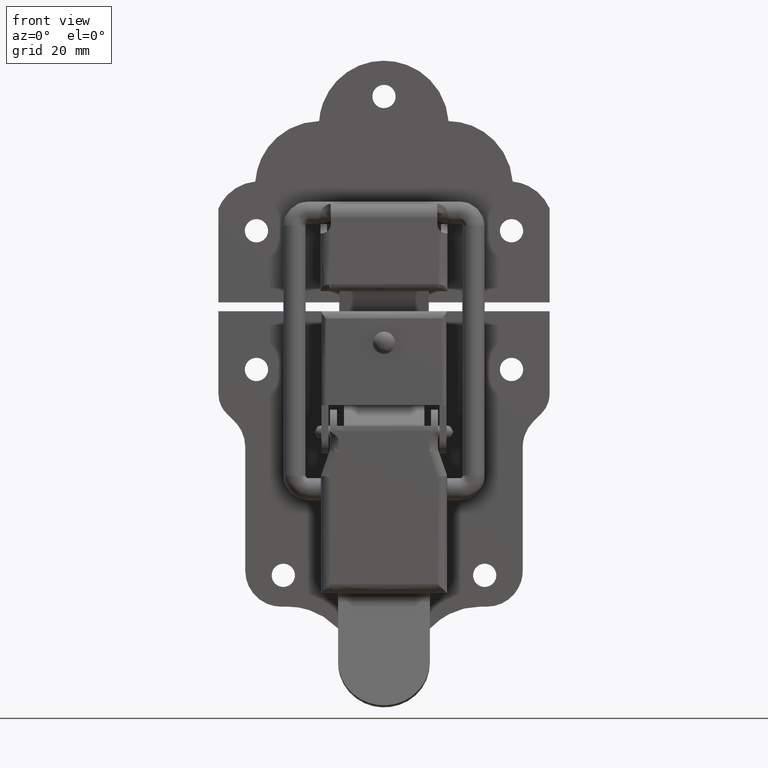
[diagram: clean part render]
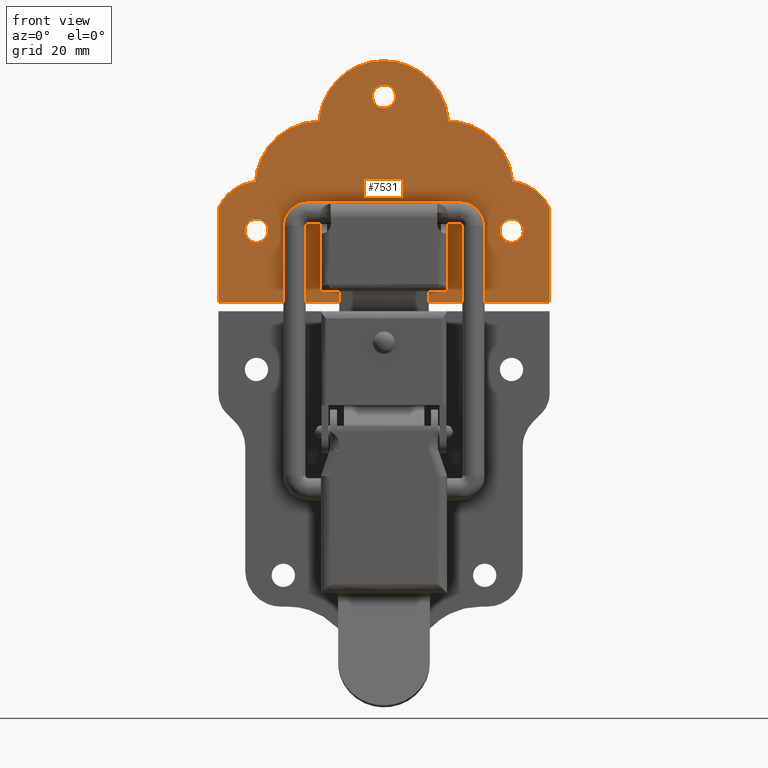
[diagram: same view with one face highlighted and labeled with its STEP entity id]
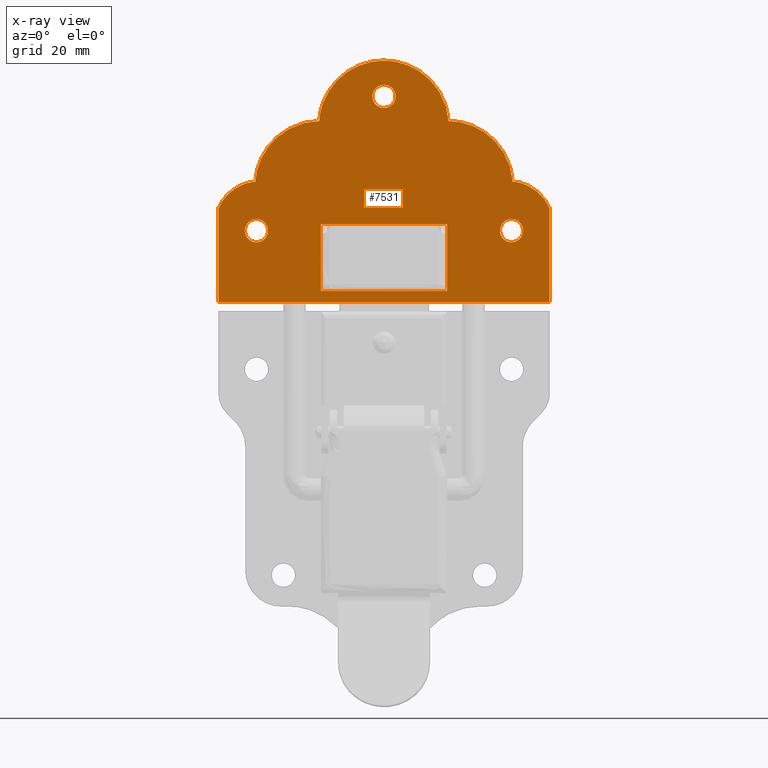
[diagram: x-ray of the same camera — body ghosted, the highlighted face saturated]
A machine part, front view. The second image highlights one B-rep face of the part: STEP entity #7531.
The next image is the same camera in x-ray: the body ghosted, the highlighted face saturated — about 0% of this face is hidden behind the body in this view.
In plain terms, the highlighted face is a freeform B-spline surface patch.
Its self-contained STEP definition (entity closure, byte-faithful):
#3042=CARTESIAN_POINT('',(25.918175231523769,10.900000000000119,45.306889010690611));
#3043=VERTEX_POINT('',#3042);
#3044=CARTESIAN_POINT('',(28.500000000000000,10.900000000000119,42.399999999999999));
#3045=VERTEX_POINT('',#3044);
#3046=CARTESIAN_POINT('',(25.918175231523769,10.900000000000121,45.306889010690618));
#3047=CARTESIAN_POINT('',(25.899999999999995,10.900000000000116,45.153982711684172));
#3048=CARTESIAN_POINT('',(25.899999999999999,10.900000000000119,45.0));
#3049=CARTESIAN_POINT('',(25.899999999999999,10.900000000000119,42.400000000000006));
#3050=CARTESIAN_POINT('',(28.500000000000000,10.900000000000119,42.399999999999999));
#3058=(BOUNDED_CURVE()B_SPLINE_CURVE(2,(#3046,#3047,#3048,#3049,#3050),.UNSPECIFIED.,.F.,.U.)B_SPLINE_CURVE_WITH_KNOTS((3,2,3),(0.229562473439313,0.250000000000000,0.500000000000000),.UNSPECIFIED.)CURVE()GEOMETRIC_REPRESENTATION_ITEM()RATIONAL_B_SPLINE_CURVE((0.956026754038274,0.976055948244220,1.0,0.707106781186548,1.0))REPRESENTATION_ITEM(''));
#3059=EDGE_CURVE('',#3043,#3045,#3058,.T.);
#3061=CARTESIAN_POINT('',(31.095150475863989,10.900000000000119,44.841273796671999));
#3062=VERTEX_POINT('',#3061);
#3063=CARTESIAN_POINT('',(28.500000000000000,10.900000000000119,42.399999999999999));
#3064=CARTESIAN_POINT('',(30.945835772940004,10.900000000000119,42.399999999999999));
#3065=CARTESIAN_POINT('',(31.095150475863985,10.900000000000123,44.841273796672006));
#3073=(BOUNDED_CURVE()B_SPLINE_CURVE(2,(#3063,#3064,#3065),.UNSPECIFIED.,.F.,.U.)B_SPLINE_CURVE_WITH_KNOTS((3,3),(0.500000000000000,0.739332962170511),.UNSPECIFIED.)CURVE()GEOMETRIC_REPRESENTATION_ITEM()RATIONAL_B_SPLINE_CURVE((1.0,0.719603993366883,0.976072041520055))REPRESENTATION_ITEM(''));
#3074=EDGE_CURVE('',#3045,#3062,#3073,.T.);
#3141=CARTESIAN_POINT('',(28.500000000000000,10.900000000000119,47.599999999999987));
#3142=VERTEX_POINT('',#3141);
#3143=CARTESIAN_POINT('',(28.500000000000000,10.900000000000119,47.599999999999987));
#3144=CARTESIAN_POINT('',(26.190746233576771,10.900000000000119,47.599999999999980));
#3145=CARTESIAN_POINT('',(25.918175231523769,10.900000000000121,45.306889010690618));
#3153=(BOUNDED_CURVE()B_SPLINE_CURVE(2,(#3143,#3144,#3145),.UNSPECIFIED.,.F.,.U.)B_SPLINE_CURVE_WITH_KNOTS((3,3),(0.0,0.229562473439313),.UNSPECIFIED.)CURVE()GEOMETRIC_REPRESENTATION_ITEM()RATIONAL_B_SPLINE_CURVE((1.0,0.731050832942328,0.956026754038274))REPRESENTATION_ITEM(''));
#3154=EDGE_CURVE('',#3142,#3043,#3153,.T.);
#3188=CARTESIAN_POINT('',(31.095150475863989,10.900000000000116,44.841273796672006));
#3189=CARTESIAN_POINT('',(31.100000000000001,10.900000000000116,44.920562814884789));
#3190=CARTESIAN_POINT('',(31.100000000000001,10.900000000000119,45.0));
#3191=CARTESIAN_POINT('',(31.100000000000001,10.900000000000119,47.599999999999980));
#3192=CARTESIAN_POINT('',(28.500000000000000,10.900000000000119,47.599999999999987));
#3200=(BOUNDED_CURVE()B_SPLINE_CURVE(2,(#3188,#3189,#3190,#3191,#3192),.UNSPECIFIED.,.F.,.U.)B_SPLINE_CURVE_WITH_KNOTS((3,2,3),(0.739332962170510,0.750000000000000,1.0),.UNSPECIFIED.)CURVE()GEOMETRIC_REPRESENTATION_ITEM()RATIONAL_B_SPLINE_CURVE((0.976072041520054,0.987502787819664,1.0,0.707106781186548,1.0))REPRESENTATION_ITEM(''));
#3201=EDGE_CURVE('',#3062,#3142,#3200,.T.);
#3228=CARTESIAN_POINT('',(-2.581824768476230,10.900000000000119,75.306889010690611));
#3229=VERTEX_POINT('',#3228);
#3230=CARTESIAN_POINT('',(0.0,10.900000000000119,72.399999999999991));
#3231=VERTEX_POINT('',#3230);
#3232=CARTESIAN_POINT('',(-2.581824768476230,10.900000000000116,75.306889010690597));
#3233=CARTESIAN_POINT('',(-2.600000000000000,10.900000000000118,75.153982711684179));
#3234=CARTESIAN_POINT('',(-2.600000000000000,10.900000000000119,75.0));
#3235=CARTESIAN_POINT('',(-2.600000000000001,10.900000000000119,72.399999999999991));
#3236=CARTESIAN_POINT('',(0.0,10.900000000000119,72.399999999999991));
#3244=(BOUNDED_CURVE()B_SPLINE_CURVE(2,(#3232,#3233,#3234,#3235,#3236),.UNSPECIFIED.,.F.,.U.)B_SPLINE_CURVE_WITH_KNOTS((3,2,3),(0.229562473439314,0.250000000000000,0.500000000000000),.UNSPECIFIED.)CURVE()GEOMETRIC_REPRESENTATION_ITEM()RATIONAL_B_SPLINE_CURVE((0.956026754038276,0.976055948244221,1.0,0.707106781186548,1.0))REPRESENTATION_ITEM(''));
#3245=EDGE_CURVE('',#3229,#3231,#3244,.T.);
#3247=CARTESIAN_POINT('',(2.595150475863987,10.900000000000119,74.841273796671999));
#3248=VERTEX_POINT('',#3247);
#3249=CARTESIAN_POINT('',(0.0,10.900000000000119,72.399999999999991));
#3250=CARTESIAN_POINT('',(2.445835772940012,10.900000000000119,72.400000000000006));
#3251=CARTESIAN_POINT('',(2.595150475863987,10.900000000000123,74.841273796671999));
#3259=(BOUNDED_CURVE()B_SPLINE_CURVE(2,(#3249,#3250,#3251),.UNSPECIFIED.,.F.,.U.)B_SPLINE_CURVE_WITH_KNOTS((3,3),(0.500000000000000,0.739332962170511),.UNSPECIFIED.)CURVE()GEOMETRIC_REPRESENTATION_ITEM()RATIONAL_B_SPLINE_CURVE((1.0,0.719603993366883,0.976072041520055))REPRESENTATION_ITEM(''));
#3260=EDGE_CURVE('',#3231,#3248,#3259,.T.);
#3327=CARTESIAN_POINT('',(0.0,10.900000000000119,77.600000000000009));
#3328=VERTEX_POINT('',#3327);
#3329=CARTESIAN_POINT('',(0.0,10.900000000000119,77.600000000000009));
#3330=CARTESIAN_POINT('',(-2.309253766423246,10.900000000000119,77.600000000000009));
#3331=CARTESIAN_POINT('',(-2.581824768476230,10.900000000000116,75.306889010690597));
#3339=(BOUNDED_CURVE()B_SPLINE_CURVE(2,(#3329,#3330,#3331),.UNSPECIFIED.,.F.,.U.)B_SPLINE_CURVE_WITH_KNOTS((3,3),(0.0,0.229562473439314),.UNSPECIFIED.)CURVE()GEOMETRIC_REPRESENTATION_ITEM()RATIONAL_B_SPLINE_CURVE((1.0,0.731050832942326,0.956026754038276))REPRESENTATION_ITEM(''));
#3340=EDGE_CURVE('',#3328,#3229,#3339,.T.);
#3374=CARTESIAN_POINT('',(2.595150475863987,10.900000000000119,74.841273796671999));
#3375=CARTESIAN_POINT('',(2.600000000000000,10.900000000000119,74.920562814884804));
#3376=CARTESIAN_POINT('',(2.600000000000000,10.900000000000119,75.0));
#3377=CARTESIAN_POINT('',(2.600000000000001,10.900000000000119,77.600000000000009));
#3378=CARTESIAN_POINT('',(0.0,10.900000000000119,77.600000000000009));
#3386=(BOUNDED_CURVE()B_SPLINE_CURVE(2,(#3374,#3375,#3376,#3377,#3378),.UNSPECIFIED.,.F.,.U.)B_SPLINE_CURVE_WITH_KNOTS((3,2,3),(0.739332962170510,0.750000000000000,1.0),.UNSPECIFIED.)CURVE()GEOMETRIC_REPRESENTATION_ITEM()RATIONAL_B_SPLINE_CURVE((0.976072041520053,0.987502787819664,1.0,0.707106781186548,1.0))REPRESENTATION_ITEM(''));
#3387=EDGE_CURVE('',#3248,#3328,#3386,.T.);
#3414=CARTESIAN_POINT('',(-31.081824768476231,10.900000000000119,45.306889010690611));
#3415=VERTEX_POINT('',#3414);
#3416=CARTESIAN_POINT('',(-28.500000000000000,10.900000000000119,42.399999999999999));
#3417=VERTEX_POINT('',#3416);
#3418=CARTESIAN_POINT('',(-31.081824768476228,10.900000000000123,45.306889010690611));
#3419=CARTESIAN_POINT('',(-31.100000000000005,10.900000000000119,45.153982711684172));
#3420=CARTESIAN_POINT('',(-31.100000000000001,10.900000000000119,45.0));
#3421=CARTESIAN_POINT('',(-31.100000000000001,10.900000000000119,42.400000000000006));
#3422=CARTESIAN_POINT('',(-28.500000000000000,10.900000000000119,42.399999999999999));
#3430=(BOUNDED_CURVE()B_SPLINE_CURVE(2,(#3418,#3419,#3420,#3421,#3422),.UNSPECIFIED.,.F.,.U.)B_SPLINE_CURVE_WITH_KNOTS((3,2,3),(0.229562473439314,0.250000000000000,0.500000000000000),.UNSPECIFIED.)CURVE()GEOMETRIC_REPRESENTATION_ITEM()RATIONAL_B_SPLINE_CURVE((0.956026754038275,0.976055948244220,1.0,0.707106781186548,1.0))REPRESENTATION_ITEM(''));
#3431=EDGE_CURVE('',#3415,#3417,#3430,.T.);
#3433=CARTESIAN_POINT('',(-25.904849524136011,10.900000000000119,44.841273796671999));
#3434=VERTEX_POINT('',#3433);
#3435=CARTESIAN_POINT('',(-28.500000000000000,10.900000000000119,42.399999999999999));
#3436=CARTESIAN_POINT('',(-26.054164227059982,10.900000000000119,42.399999999999999));
#3437=CARTESIAN_POINT('',(-25.904849524136008,10.900000000000123,44.841273796672006));
#3445=(BOUNDED_CURVE()B_SPLINE_CURVE(2,(#3435,#3436,#3437),.UNSPECIFIED.,.F.,.U.)B_SPLINE_CURVE_WITH_KNOTS((3,3),(0.500000000000000,0.739332962170511),.UNSPECIFIED.)CURVE()GEOMETRIC_REPRESENTATION_ITEM()RATIONAL_B_SPLINE_CURVE((1.0,0.719603993366883,0.976072041520055))REPRESENTATION_ITEM(''));
#3446=EDGE_CURVE('',#3417,#3434,#3445,.T.);
#3513=CARTESIAN_POINT('',(-28.500000000000000,10.900000000000119,47.599999999999987));
#3514=VERTEX_POINT('',#3513);
#3515=CARTESIAN_POINT('',(-28.500000000000000,10.900000000000119,47.599999999999987));
#3516=CARTESIAN_POINT('',(-30.809253766423232,10.900000000000121,47.599999999999994));
#3517=CARTESIAN_POINT('',(-31.081824768476231,10.900000000000121,45.306889010690618));
#3525=(BOUNDED_CURVE()B_SPLINE_CURVE(2,(#3515,#3516,#3517),.UNSPECIFIED.,.F.,.U.)B_SPLINE_CURVE_WITH_KNOTS((3,3),(0.0,0.229562473439314),.UNSPECIFIED.)CURVE()GEOMETRIC_REPRESENTATION_ITEM()RATIONAL_B_SPLINE_CURVE((1.0,0.731050832942327,0.956026754038275))REPRESENTATION_ITEM(''));
#3526=EDGE_CURVE('',#3514,#3415,#3525,.T.);
#3560=CARTESIAN_POINT('',(-25.904849524136015,10.900000000000123,44.841273796671999));
#3561=CARTESIAN_POINT('',(-25.899999999999999,10.900000000000116,44.920562814884796));
#3562=CARTESIAN_POINT('',(-25.899999999999999,10.900000000000119,45.0));
#3563=CARTESIAN_POINT('',(-25.899999999999999,10.900000000000119,47.599999999999980));
#3564=CARTESIAN_POINT('',(-28.500000000000000,10.900000000000119,47.599999999999987));
#3572=(BOUNDED_CURVE()B_SPLINE_CURVE(2,(#3560,#3561,#3562,#3563,#3564),.UNSPECIFIED.,.F.,.U.)B_SPLINE_CURVE_WITH_KNOTS((3,2,3),(0.739332962170510,0.750000000000000,1.0),.UNSPECIFIED.)CURVE()GEOMETRIC_REPRESENTATION_ITEM()RATIONAL_B_SPLINE_CURVE((0.976072041520054,0.987502787819664,1.0,0.707106781186548,1.0))REPRESENTATION_ITEM(''));
#3573=EDGE_CURVE('',#3434,#3514,#3572,.T.);
#6800=CARTESIAN_POINT('',(14.199999999999999,10.900000000000000,46.500000000000000));
#6801=VERTEX_POINT('',#6800);
#6807=CARTESIAN_POINT('',(-14.199999999999999,10.900000000000000,46.500000000000000));
#6808=VERTEX_POINT('',#6807);
#6809=CARTESIAN_POINT('',(-14.199999999999999,10.900000000000000,46.500000000000000));
#6810=CARTESIAN_POINT('',(14.199999999999999,10.900000000000000,46.500000000000000));
#6811=QUASI_UNIFORM_CURVE('',1,(#6809,#6810),.UNSPECIFIED.,.F.,.U.);
#6812=EDGE_CURVE('',#6808,#6801,#6811,.T.);
#7133=CARTESIAN_POINT('',(37.0,10.900000000000119,50.000531814607101));
#7134=VERTEX_POINT('',#7133);
#7135=CARTESIAN_POINT('',(28.750459302145401,10.900000000000119,56.000243559326698));
#7136=VERTEX_POINT('',#7135);
#7137=CARTESIAN_POINT('',(37.000000000000092,10.900000000000119,50.000531814607143));
#7138=CARTESIAN_POINT('',(34.653985682245050,10.900000000000119,55.446158566480449));
#7139=CARTESIAN_POINT('',(28.750459302145401,10.900000000000119,56.000243559326677));
#7147=(BOUNDED_CURVE()B_SPLINE_CURVE(2,(#7137,#7138,#7139),.UNSPECIFIED.,.F.,.U.)CURVE()GEOMETRIC_REPRESENTATION_ITEM()QUASI_UNIFORM_CURVE()RATIONAL_B_SPLINE_CURVE((1.0,0.860157743170858,1.0))REPRESENTATION_ITEM(''));
#7148=EDGE_CURVE('',#7134,#7136,#7147,.T.);
#7185=CARTESIAN_POINT('',(37.0,10.900000000000119,29.0));
#7186=VERTEX_POINT('',#7185);
#7187=CARTESIAN_POINT('',(37.0,10.900000000000119,29.0));
#7188=CARTESIAN_POINT('',(37.0,10.900000000000119,50.000531814607101));
#7189=QUASI_UNIFORM_CURVE('',1,(#7187,#7188),.UNSPECIFIED.,.F.,.U.);
#7190=EDGE_CURVE('',#7186,#7134,#7189,.T.);
#7213=CARTESIAN_POINT('',(-37.0,10.900000000000119,29.0));
#7214=VERTEX_POINT('',#7213);
#7215=CARTESIAN_POINT('',(-37.0,10.900000000000119,29.0));
#7216=CARTESIAN_POINT('',(37.0,10.900000000000119,29.0));
#7217=QUASI_UNIFORM_CURVE('',1,(#7215,#7216),.UNSPECIFIED.,.F.,.U.);
#7218=EDGE_CURVE('',#7214,#7186,#7217,.T.);
#7241=CARTESIAN_POINT('',(-37.0,10.900000000000119,50.000531814607399));
#7242=VERTEX_POINT('',#7241);
#7243=CARTESIAN_POINT('',(-37.0,10.900000000000119,50.000531814607399));
#7244=CARTESIAN_POINT('',(-37.0,10.900000000000119,29.0));
#7245=QUASI_UNIFORM_CURVE('',1,(#7243,#7244),.UNSPECIFIED.,.F.,.U.);
#7246=EDGE_CURVE('',#7242,#7214,#7245,.T.);
#7278=CARTESIAN_POINT('',(-28.749591841258251,10.900000000000119,56.000324938145397));
#7279=VERTEX_POINT('',#7278);
#7280=CARTESIAN_POINT('',(-28.749591841258258,10.900000000000119,56.000324938145397));
#7281=CARTESIAN_POINT('',(-34.653752716378712,10.900000000000121,55.446699332640065));
#7282=CARTESIAN_POINT('',(-36.999999999999979,10.900000000000119,50.000531814607392));
#7290=(BOUNDED_CURVE()B_SPLINE_CURVE(2,(#7280,#7281,#7282),.UNSPECIFIED.,.F.,.U.)CURVE()GEOMETRIC_REPRESENTATION_ITEM()QUASI_UNIFORM_CURVE()RATIONAL_B_SPLINE_CURVE((1.0,0.860135523753254,1.0))REPRESENTATION_ITEM(''));
#7291=EDGE_CURVE('',#7279,#7242,#7290,.T.);
#7331=CARTESIAN_POINT('',(-14.499448533091400,10.900000000000119,69.500399288528001));
#7332=VERTEX_POINT('',#7331);
#7333=CARTESIAN_POINT('',(-14.499448533091410,10.900000000000119,69.500399288527987));
#7334=CARTESIAN_POINT('',(-27.831573734424918,10.900000000000119,69.302281774969700));
#7335=CARTESIAN_POINT('',(-28.749591841258241,10.900000000000119,56.000324938145397));
#7343=(BOUNDED_CURVE()B_SPLINE_CURVE(2,(#7333,#7334,#7335),.UNSPECIFIED.,.F.,.U.)CURVE()GEOMETRIC_REPRESENTATION_ITEM()QUASI_UNIFORM_CURVE()RATIONAL_B_SPLINE_CURVE((1.0,0.736092947840625,1.0))REPRESENTATION_ITEM(''));
#7344=EDGE_CURVE('',#7332,#7279,#7343,.T.);
#7388=CARTESIAN_POINT('',(14.431527304478459,10.900000000000119,69.499259627616894));
#7389=VERTEX_POINT('',#7388);
#7390=CARTESIAN_POINT('',(14.431527304478459,10.900000000000119,69.499259627616880));
#7391=CARTESIAN_POINT('',(13.498950715773795,10.900000000000121,82.999466915684152));
#7392=CARTESIAN_POINT('',(-0.033428810030874,10.900000000000119,82.999999988749721));
#7393=CARTESIAN_POINT('',(-13.565808335835557,10.900000000000121,83.000533061815304));
#7394=CARTESIAN_POINT('',(-14.499448533091391,10.900000000000119,69.500399288528001));
#7402=(BOUNDED_CURVE()B_SPLINE_CURVE(2,(#7390,#7391,#7392,#7393,#7394),.UNSPECIFIED.,.F.,.U.)B_SPLINE_CURVE_WITH_KNOTS((3,2,3),(0.0,0.500000000000000,1.0),.UNSPECIFIED.)CURVE()GEOMETRIC_REPRESENTATION_ITEM()RATIONAL_B_SPLINE_CURVE((1.0,0.731079255547110,1.0,0.731079255547110,1.0))REPRESENTATION_ITEM(''));
#7403=EDGE_CURVE('',#7389,#7332,#7402,.T.);
#7445=CARTESIAN_POINT('',(28.750459302145419,10.900000000000119,56.000243559326698));
#7446=CARTESIAN_POINT('',(27.826402618885528,10.900000000000118,69.363893062423045));
#7447=CARTESIAN_POINT('',(14.431527304478459,10.900000000000119,69.499259627616937));
#7455=(BOUNDED_CURVE()B_SPLINE_CURVE(2,(#7445,#7446,#7447),.UNSPECIFIED.,.F.,.U.)CURVE()GEOMETRIC_REPRESENTATION_ITEM()QUASI_UNIFORM_CURVE()RATIONAL_B_SPLINE_CURVE((1.0,0.734527076236413,1.0))REPRESENTATION_ITEM(''));
#7456=EDGE_CURVE('',#7136,#7389,#7455,.T.);
#7476=CARTESIAN_POINT('',(-40.696299856573653,10.900000000000000,85.697299883573251));
#7477=CARTESIAN_POINT('',(40.696301841408307,10.900000000000000,85.697299883573251));
#7478=CARTESIAN_POINT('',(-40.696299856573653,10.900000000000000,26.302698656829278));
#7479=CARTESIAN_POINT('',(40.696301841408307,10.900000000000000,26.302698656829278));
#7480=B_SPLINE_SURFACE_WITH_KNOTS('',1,1,((#7476,#7478),(#7477,#7479)),.UNSPECIFIED.,.F.,.F.,.U.,(2,2),(2,2),(0.0,81.392601697981959),(0.0,59.394601226743973),.UNSPECIFIED.);
#7481=ORIENTED_EDGE('',*,*,#7456,.T.);
#7482=ORIENTED_EDGE('',*,*,#7403,.T.);
#7483=ORIENTED_EDGE('',*,*,#7344,.T.);
#7484=ORIENTED_EDGE('',*,*,#7291,.T.);
#7485=ORIENTED_EDGE('',*,*,#7246,.T.);
#7486=ORIENTED_EDGE('',*,*,#7218,.T.);
#7487=ORIENTED_EDGE('',*,*,#7190,.T.);
#7488=ORIENTED_EDGE('',*,*,#7148,.T.);
#7489=EDGE_LOOP('',(#7481,#7482,#7483,#7484,#7485,#7486,#7487,#7488));
#7490=FACE_OUTER_BOUND('',#7489,.T.);
#7491=CARTESIAN_POINT('',(-14.199999999999999,10.900000000000000,31.500000000000000));
#7492=VERTEX_POINT('',#7491);
#7493=CARTESIAN_POINT('',(14.199999999999999,10.900000000000000,31.500000000000000));
#7494=VERTEX_POINT('',#7493);
#7495=CARTESIAN_POINT('',(-14.199999999999999,10.900000000000000,31.500000000000000));
#7496=CARTESIAN_POINT('',(14.199999999999999,10.900000000000000,31.500000000000000));
#7497=QUASI_UNIFORM_CURVE('',1,(#7495,#7496),.UNSPECIFIED.,.F.,.U.);
#7498=EDGE_CURVE('',#7492,#7494,#7497,.T.);
#7499=ORIENTED_EDGE('',*,*,#7498,.F.);
#7500=CARTESIAN_POINT('',(-14.199999999999999,10.900000000000000,46.500000000000000));
#7501=CARTESIAN_POINT('',(-14.199999999999999,10.900000000000000,31.500000000000000));
#7502=QUASI_UNIFORM_CURVE('',1,(#7500,#7501),.UNSPECIFIED.,.F.,.U.);
#7503=EDGE_CURVE('',#6808,#7492,#7502,.T.);
#7504=ORIENTED_EDGE('',*,*,#7503,.F.);
#7505=ORIENTED_EDGE('',*,*,#6812,.T.);
#7506=CARTESIAN_POINT('',(14.199999999999999,10.900000000000000,46.500000000000000));
#7507=CARTESIAN_POINT('',(14.199999999999999,10.900000000000000,31.500000000000000));
#7508=QUASI_UNIFORM_CURVE('',1,(#7506,#7507),.UNSPECIFIED.,.F.,.U.);
#7509=EDGE_CURVE('',#6801,#7494,#7508,.T.);
#7510=ORIENTED_EDGE('',*,*,#7509,.T.);
#7511=EDGE_LOOP('',(#7499,#7504,#7505,#7510));
#7512=FACE_BOUND('',#7511,.T.);
#7513=ORIENTED_EDGE('',*,*,#3446,.F.);
#7514=ORIENTED_EDGE('',*,*,#3431,.F.);
#7515=ORIENTED_EDGE('',*,*,#3526,.F.);
#7516=ORIENTED_EDGE('',*,*,#3573,.F.);
#7517=EDGE_LOOP('',(#7513,#7514,#7515,#7516));
#7518=FACE_BOUND('',#7517,.T.);
#7519=ORIENTED_EDGE('',*,*,#3260,.F.);
#7520=ORIENTED_EDGE('',*,*,#3245,.F.);
#7521=ORIENTED_EDGE('',*,*,#3340,.F.);
#7522=ORIENTED_EDGE('',*,*,#3387,.F.);
#7523=EDGE_LOOP('',(#7519,#7520,#7521,#7522));
#7524=FACE_BOUND('',#7523,.T.);
#7525=ORIENTED_EDGE('',*,*,#3074,.F.);
#7526=ORIENTED_EDGE('',*,*,#3059,.F.);
#7527=ORIENTED_EDGE('',*,*,#3154,.F.);
#7528=ORIENTED_EDGE('',*,*,#3201,.F.);
#7529=EDGE_LOOP('',(#7525,#7526,#7527,#7528));
#7530=FACE_BOUND('',#7529,.T.);
#7531=ADVANCED_FACE('',(#7490,#7512,#7518,#7524,#7530),#7480,.F.);